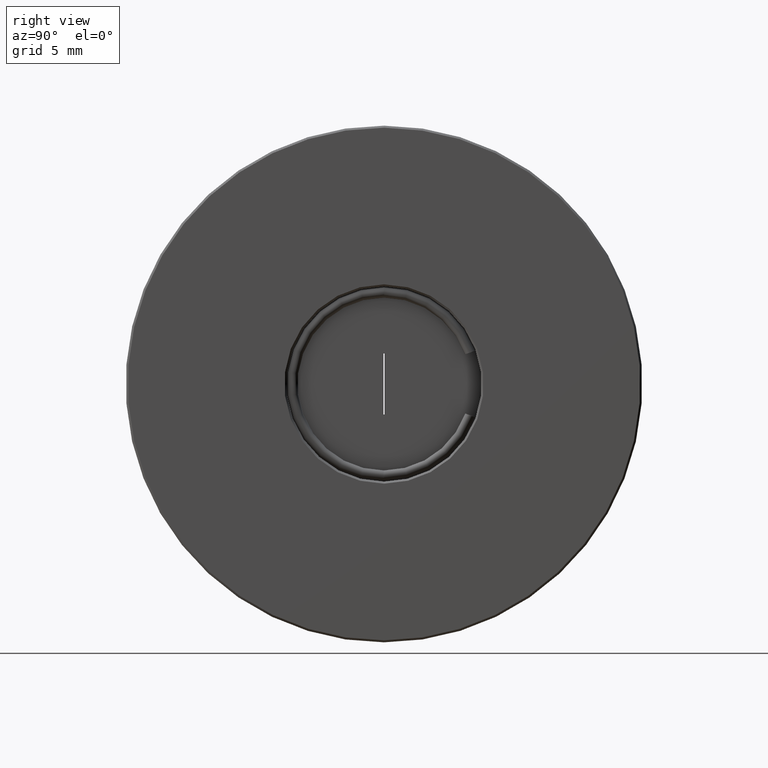
[diagram: clean part render]
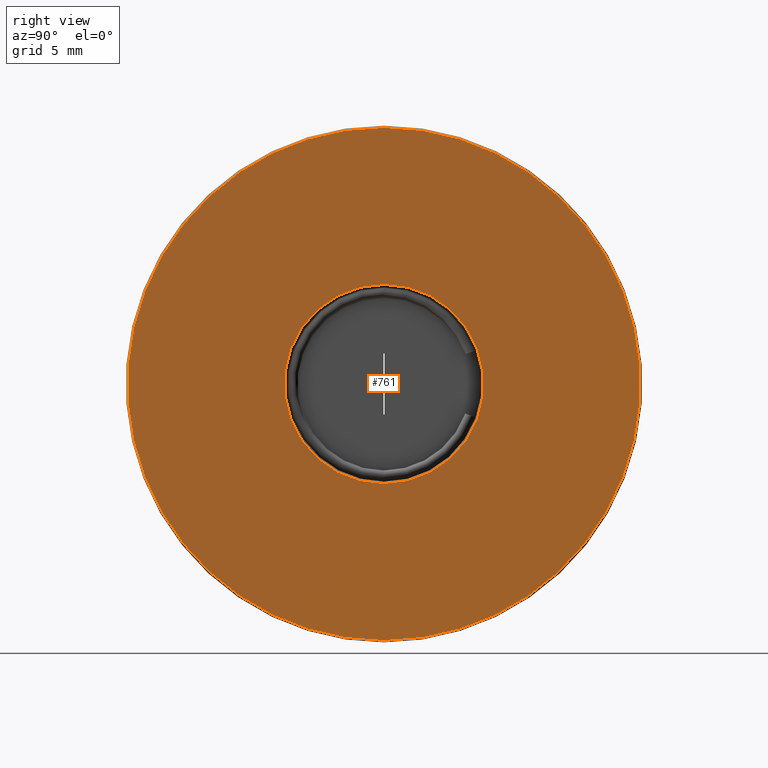
[diagram: same view with one face highlighted and labeled with its STEP entity id]
A machine part, right view. The second image highlights one B-rep face of the part: STEP entity #761.
In plain terms, the highlighted planar face has unit normal (1, 0, 0).
Its self-contained STEP definition (entity closure, byte-faithful):
#83 = CARTESIAN_POINT ( 'NONE',  ( -2.434863851252999645, 1.436758841085001626, 12.79999999999999893 ) ) ;
#168 = ORIENTED_EDGE ( 'NONE', *, *, #805, .T. ) ;
#169 = FACE_OUTER_BOUND ( 'NONE', #218, .T. ) ;
#218 = EDGE_LOOP ( 'NONE', ( #278, #921 ) ) ;
#238 = VERTEX_POINT ( 'NONE', #1000 ) ;
#243 = CARTESIAN_POINT ( 'NONE',  ( -2.434863851252999645, 1.436758841085000071, 25.39999999999999858 ) ) ;
#278 = ORIENTED_EDGE ( 'NONE', *, *, #356, .T. ) ;
#282 = DIRECTION ( 'NONE',  ( 1.000000000000000000, 0.000000000000000000, 0.000000000000000000 ) ) ;
#284 = CIRCLE ( 'NONE', #333, 12.59999999999999964 ) ;
#312 = CIRCLE ( 'NONE', #922, 4.900000000000001243 ) ;
#333 = AXIS2_PLACEMENT_3D ( 'NONE', #243, #1108, #902 ) ;
#352 = CARTESIAN_POINT ( 'NONE',  ( -2.434863851252999645, 1.436758841085000071, 25.39999999999999858 ) ) ;
#356 = EDGE_CURVE ( 'NONE', #238, #954, #771, .T. ) ;
#364 = AXIS2_PLACEMENT_3D ( 'NONE', #818, #282, #625 ) ;
#415 = VERTEX_POINT ( 'NONE', #1348 ) ;
#477 = CIRCLE ( 'NONE', #940, 4.900000000000001243 ) ;
#526 = DIRECTION ( 'NONE',  ( -1.000000000000000000, 0.000000000000000000, 0.000000000000000000 ) ) ;
#599 = PLANE ( 'NONE',  #364 ) ;
#625 = DIRECTION ( 'NONE',  ( 0.000000000000000000, 1.000000000000000000, 0.000000000000000000 ) ) ;
#761 = ADVANCED_FACE ( 'NONE', ( #1268, #169 ), #599, .T. ) ;
#771 = CIRCLE ( 'NONE', #1310, 12.59999999999999964 ) ;
#791 = DIRECTION ( 'NONE',  ( 1.000000000000000000, 0.000000000000000000, 0.000000000000000000 ) ) ;
#805 = EDGE_CURVE ( 'NONE', #415, #872, #477, .T. ) ;
#818 = CARTESIAN_POINT ( 'NONE',  ( -2.434863851252999645, 1.436758841085000071, 25.39999999999999858 ) ) ;
#849 = DIRECTION ( 'NONE',  ( -1.000000000000000000, 0.000000000000000000, 0.000000000000000000 ) ) ;
#851 = EDGE_LOOP ( 'NONE', ( #168, #972 ) ) ;
#872 = VERTEX_POINT ( 'NONE', #1420 ) ;
#879 = CARTESIAN_POINT ( 'NONE',  ( -2.434863851252999645, 1.436758841085000071, 25.39999999999999858 ) ) ;
#902 = DIRECTION ( 'NONE',  ( 0.000000000000000000, 0.000000000000000000, -1.000000000000000000 ) ) ;
#921 = ORIENTED_EDGE ( 'NONE', *, *, #1210, .T. ) ;
#922 = AXIS2_PLACEMENT_3D ( 'NONE', #879, #849, #1299 ) ;
#940 = AXIS2_PLACEMENT_3D ( 'NONE', #1391, #526, #1203 ) ;
#954 = VERTEX_POINT ( 'NONE', #83 ) ;
#972 = ORIENTED_EDGE ( 'NONE', *, *, #1156, .T. ) ;
#1000 = CARTESIAN_POINT ( 'NONE',  ( -2.434863851252999645, 1.436758841085000071, 38.00000000000000000 ) ) ;
#1027 = DIRECTION ( 'NONE',  ( 0.000000000000000000, 0.000000000000000000, -1.000000000000000000 ) ) ;
#1108 = DIRECTION ( 'NONE',  ( 1.000000000000000000, 0.000000000000000000, 0.000000000000000000 ) ) ;
#1156 = EDGE_CURVE ( 'NONE', #872, #415, #312, .T. ) ;
#1203 = DIRECTION ( 'NONE',  ( 0.000000000000000000, 0.000000000000000000, -1.000000000000000000 ) ) ;
#1210 = EDGE_CURVE ( 'NONE', #954, #238, #284, .T. ) ;
#1268 = FACE_BOUND ( 'NONE', #851, .T. ) ;
#1299 = DIRECTION ( 'NONE',  ( 0.000000000000000000, 0.000000000000000000, -1.000000000000000000 ) ) ;
#1310 = AXIS2_PLACEMENT_3D ( 'NONE', #352, #791, #1027 ) ;
#1348 = CARTESIAN_POINT ( 'NONE',  ( -2.434863851252999645, 1.436758841085000071, 20.49999999999999645 ) ) ;
#1391 = CARTESIAN_POINT ( 'NONE',  ( -2.434863851252999645, 1.436758841085000071, 25.39999999999999858 ) ) ;
#1420 = CARTESIAN_POINT ( 'NONE',  ( -2.434863851252999645, 1.436758841085000737, 30.30000000000000071 ) ) ;